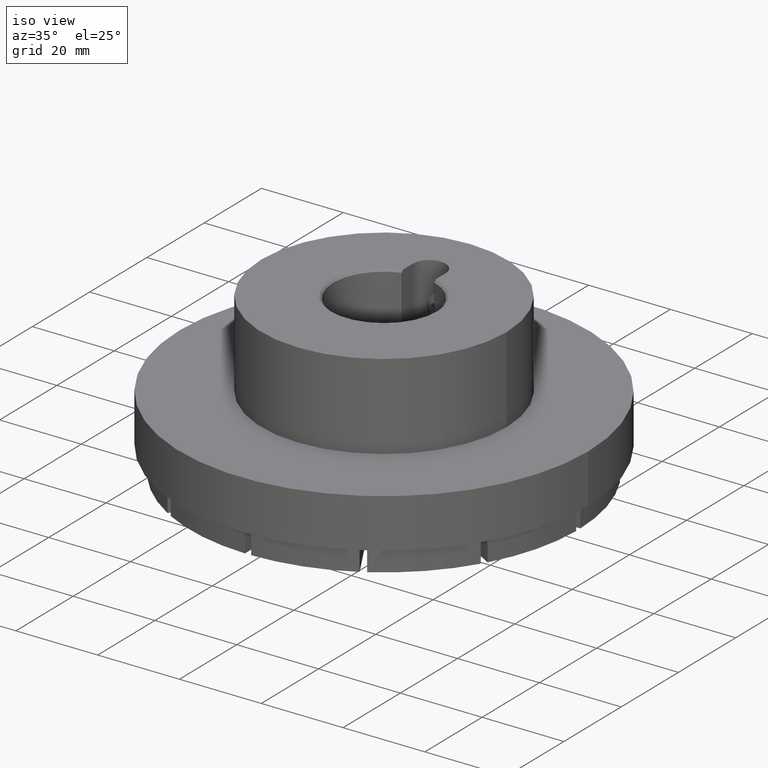
[diagram: clean part render]
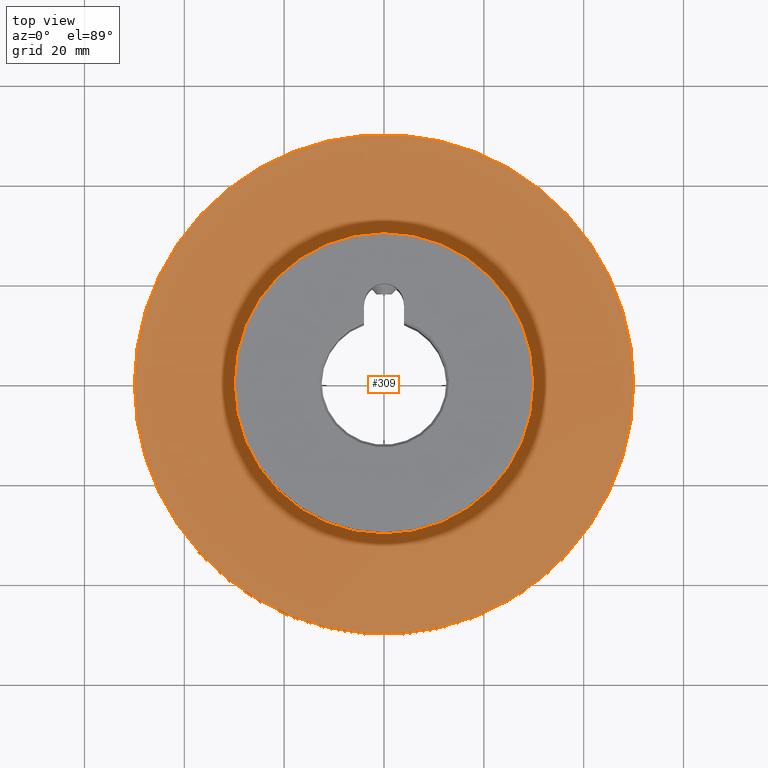
[diagram: tour spotlight — one face highlighted and labeled with its STEP entity id]
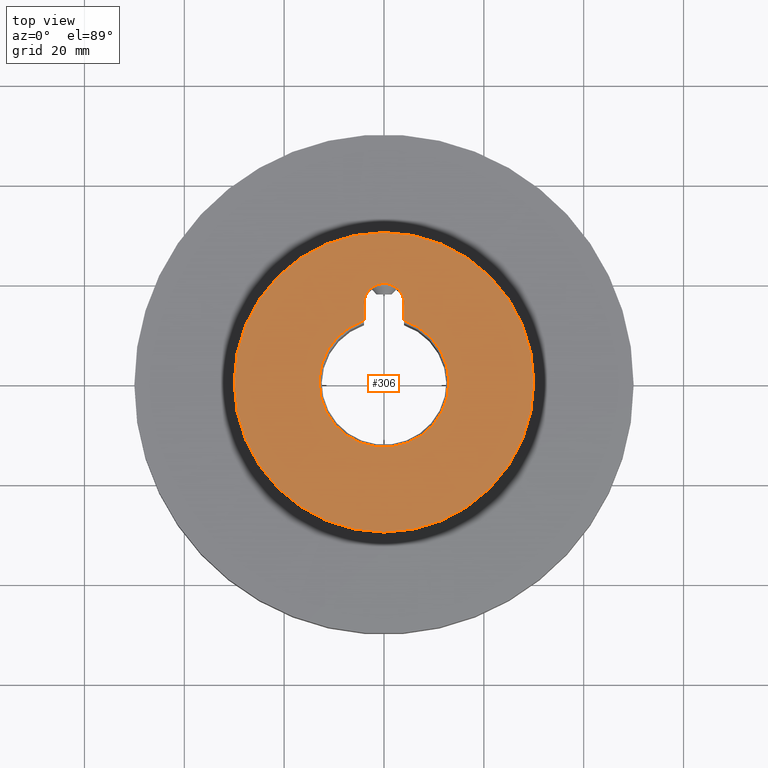
[diagram: tour spotlight — one face highlighted and labeled with its STEP entity id]
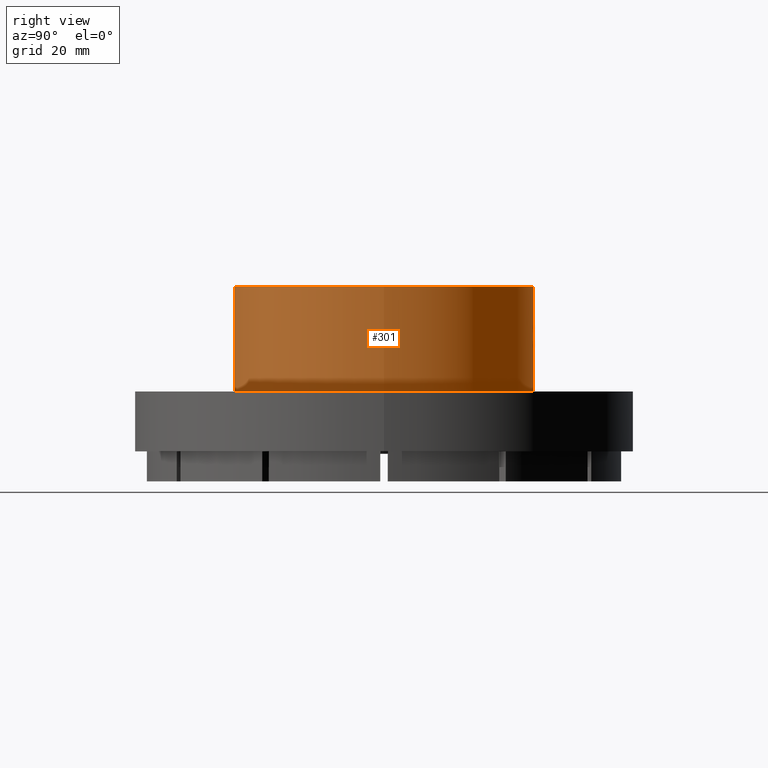
[diagram: tour spotlight — one face highlighted and labeled with its STEP entity id]
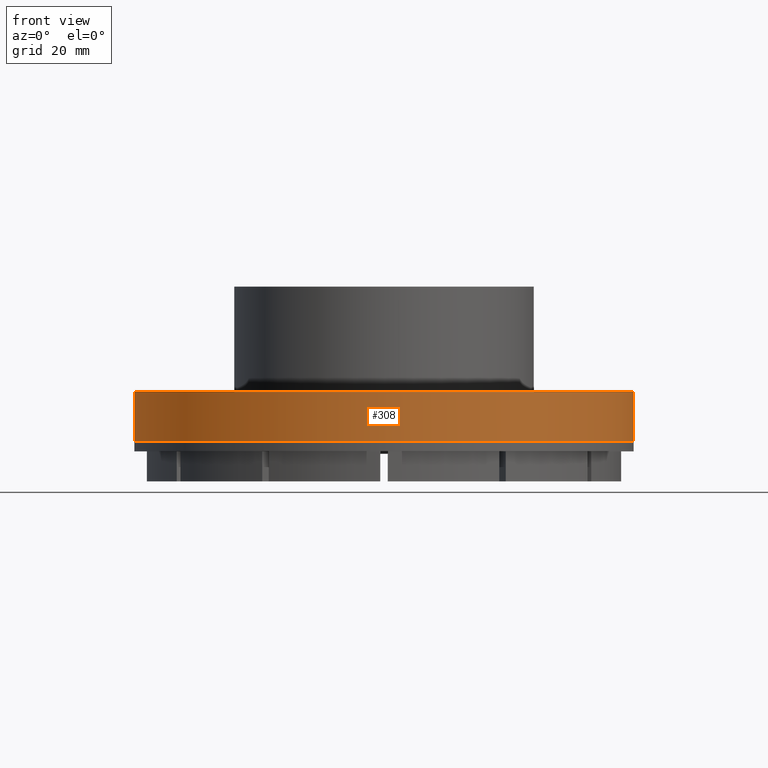
[diagram: tour spotlight — one face highlighted and labeled with its STEP entity id]
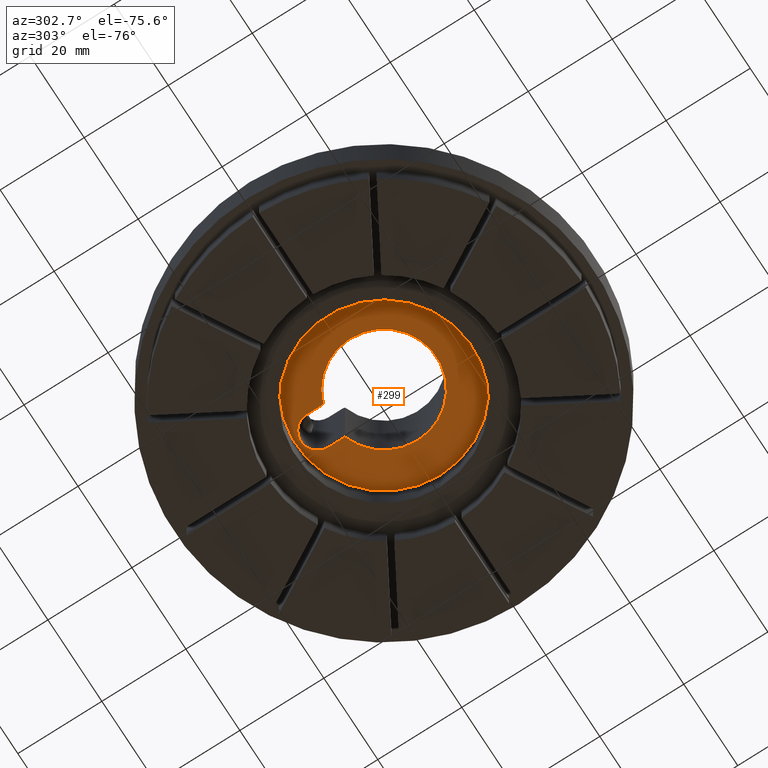
[diagram: tour spotlight — one face highlighted and labeled with its STEP entity id]
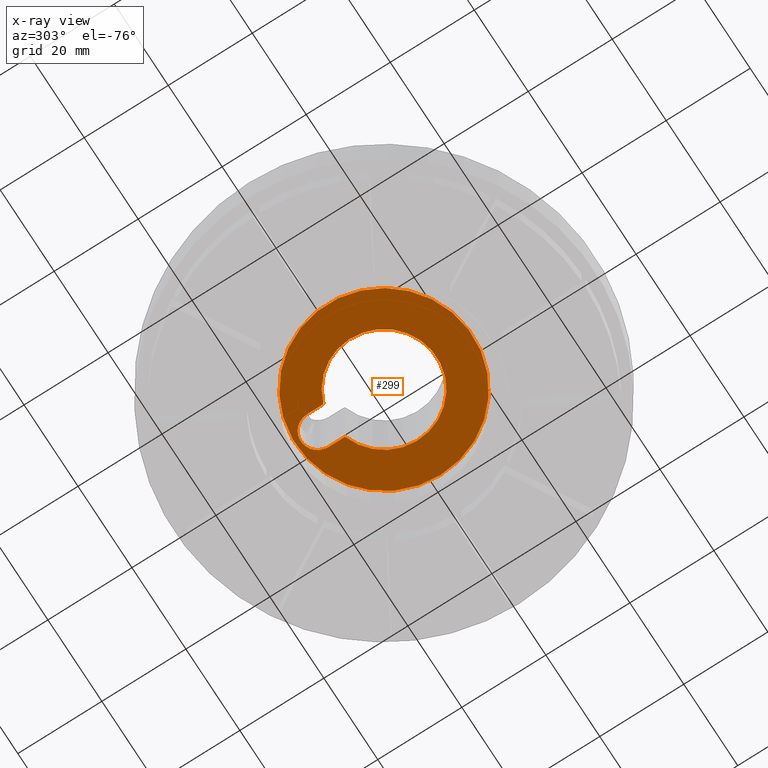
[diagram: x-ray of the same camera — body ghosted, this tour face saturated]
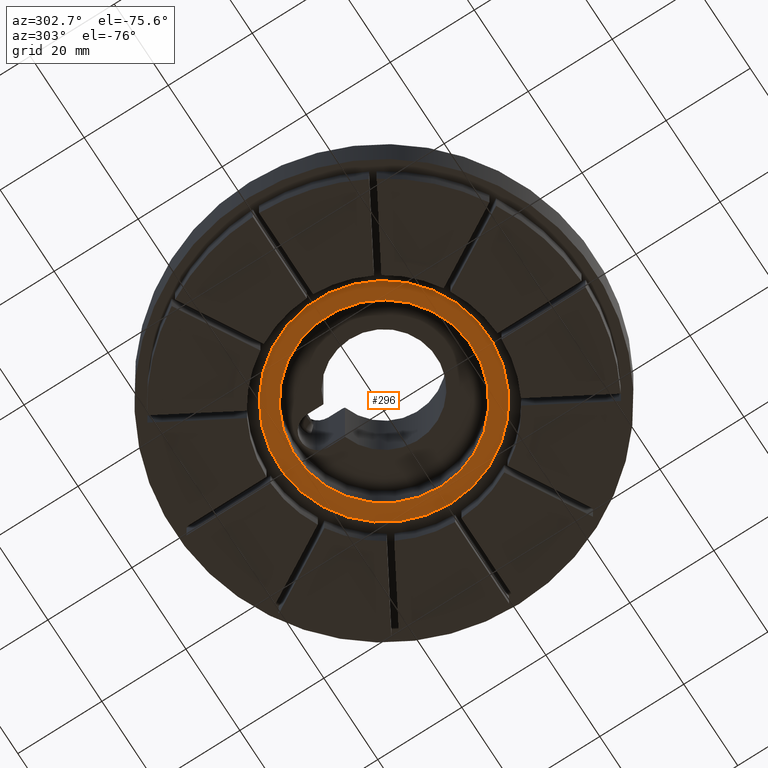
[diagram: tour spotlight — one face highlighted and labeled with its STEP entity id]
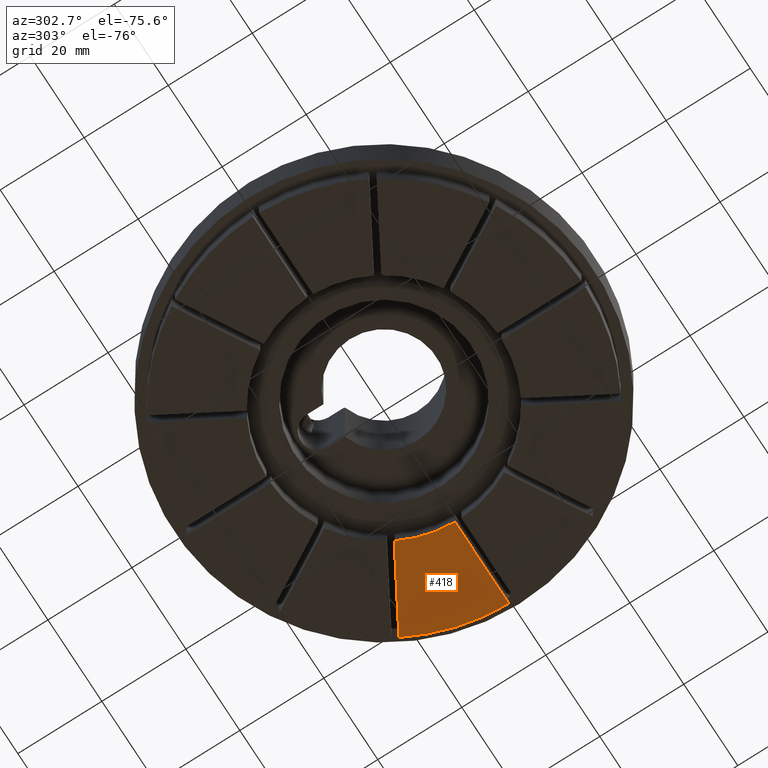
[diagram: tour spotlight — one face highlighted and labeled with its STEP entity id]
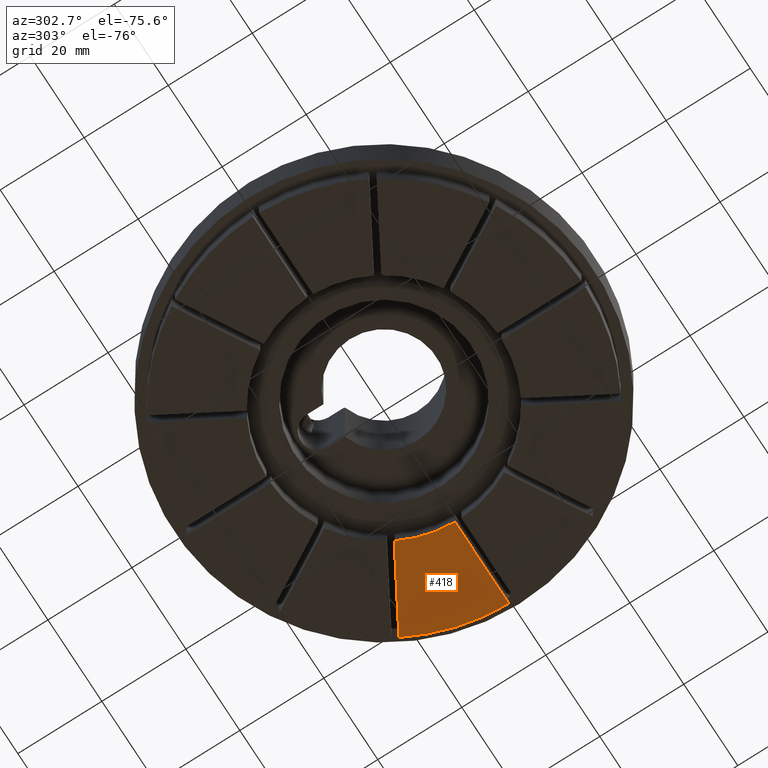
[diagram: tour spotlight — one face highlighted and labeled with its STEP entity id]
A machine part: a face-by-face anatomy tour. The part has 167 B-rep faces; the first image is the clean iso view, then the 8 largest visible faces are spotlighted one at a time (largest first), each with its STEP entity span.

Face 1 — top view, entity #309. In plain terms, the highlighted planar face has unit normal (0, 0, 1).
Definition (entity closure, byte-faithful):
#309 = ADVANCED_FACE( '', ( #456, #457 ), #458, .T. );
#456 = FACE_OUTER_BOUND( '', #668, .T. );
#457 = FACE_BOUND( '', #669, .T. );
#458 = PLANE( '', #670 );
#668 = EDGE_LOOP( '', ( #929 ) );
#669 = EDGE_LOOP( '', ( #930 ) );
#670 = AXIS2_PLACEMENT_3D( '', #931, #932, #933 );
#929 = ORIENTED_EDGE( '', *, *, #1533, .T. );
#930 = ORIENTED_EDGE( '', *, *, #1526, .F. );
#931 = CARTESIAN_POINT( '', ( 0.000000000000000, 0.000000000000000, 18.0000000000000 ) );
#932 = DIRECTION( '', ( 0.000000000000000, 0.000000000000000, 1.00000000000000 ) );
#933 = DIRECTION( '', ( 1.00000000000000, 0.000000000000000, 0.000000000000000 ) );
#1526 = EDGE_CURVE( '', #1747, #1747, #1748, .T. );
#1533 = EDGE_CURVE( '', #1759, #1759, #1760, .T. );
#1747 = VERTEX_POINT( '', #2169 );
#1748 = CIRCLE( '', #2170, 30.0000000000000 );
#1759 = VERTEX_POINT( '', #2244 );
#1760 = CIRCLE( '', #2245, 50.0000000000000 );
#2169 = CARTESIAN_POINT( '', ( 30.0000000000000, 0.000000000000000, 18.0000000000000 ) );
#2170 = AXIS2_PLACEMENT_3D( '', #2726, #2727, #2728 );
#2244 = CARTESIAN_POINT( '', ( 50.0000000000000, 0.000000000000000, 18.0000000000000 ) );
#2245 = AXIS2_PLACEMENT_3D( '', #2740, #2741, #2742 );
#2726 = CARTESIAN_POINT( '', ( 0.000000000000000, 0.000000000000000, 18.0000000000000 ) );
#2727 = DIRECTION( '', ( 0.000000000000000, 0.000000000000000, 1.00000000000000 ) );
#2728 = DIRECTION( '', ( 1.00000000000000, 0.000000000000000, 0.000000000000000 ) );
#2740 = CARTESIAN_POINT( '', ( 0.000000000000000, 0.000000000000000, 18.0000000000000 ) );
#2741 = DIRECTION( '', ( 0.000000000000000, 0.000000000000000, 1.00000000000000 ) );
#2742 = DIRECTION( '', ( 1.00000000000000, 0.000000000000000, 0.000000000000000 ) );

Face 2 — top view, entity #306. In plain terms, the highlighted planar face has unit normal (0, 0, 1).
Definition (entity closure, byte-faithful):
#306 = ADVANCED_FACE( '', ( #447, #448 ), #449, .T. );
#447 = FACE_OUTER_BOUND( '', #659, .T. );
#448 = FACE_BOUND( '', #660, .T. );
#449 = PLANE( '', #661 );
#659 = EDGE_LOOP( '', ( #911 ) );
#660 = EDGE_LOOP( '', ( #912, #913, #914, #915 ) );
#661 = AXIS2_PLACEMENT_3D( '', #916, #917, #918 );
#911 = ORIENTED_EDGE( '', *, *, #1525, .F. );
#912 = ORIENTED_EDGE( '', *, *, #1522, .F. );
#913 = ORIENTED_EDGE( '', *, *, #1512, .T. );
#914 = ORIENTED_EDGE( '', *, *, #1531, .F. );
#915 = ORIENTED_EDGE( '', *, *, #1529, .F. );
#916 = CARTESIAN_POINT( '', ( 0.000000000000000, 0.000000000000000, 39.0000000000000 ) );
#917 = DIRECTION( '', ( 0.000000000000000, 0.000000000000000, 1.00000000000000 ) );
#918 = DIRECTION( '', ( 1.00000000000000, 0.000000000000000, 0.000000000000000 ) );
#1512 = EDGE_CURVE( '', #1723, #1720, #1724, .F. );
#1522 = EDGE_CURVE( '', #1723, #1740, #1741, .F. );
#1525 = EDGE_CURVE( '', #1745, #1745, #1746, .F. );
#1529 = EDGE_CURVE( '', #1740, #1753, #1754, .F. );
#1531 = EDGE_CURVE( '', #1753, #1720, #1756, .F. );
#1720 = VERTEX_POINT( '', #2069 );
#1723 = VERTEX_POINT( '', #2075 );
#1724 = CIRCLE( '', #2076, 13.0000000000000 );
#1740 = VERTEX_POINT( '', #2099 );
#1741 = LINE( '', #2100, #2101 );
#1745 = VERTEX_POINT( '', #2167 );
#1746 = CIRCLE( '', #2168, 30.0000000000000 );
#1753 = VERTEX_POINT( '', #2236 );
#1754 = CIRCLE( '', #2237, 4.00000000000000 );
#1756 = LINE( '', #2240, #2241 );
#2069 = CARTESIAN_POINT( '', ( -4.00000000000000, 12.3693168768530, 39.0000000000000 ) );
#2075 = CARTESIAN_POINT( '', ( 4.00000000000000, 12.3693168768530, 39.0000000000000 ) );
#2076 = AXIS2_PLACEMENT_3D( '', #2702, #2703, #2704 );
#2099 = CARTESIAN_POINT( '', ( 4.00000000000000, 15.8000000000000, 39.0000000000000 ) );
#2100 = CARTESIAN_POINT( '', ( 4.00000000000000, 11.8427192823270, 39.0000000000000 ) );
#2101 = VECTOR( '', #2721, 1000.00000000000 );
#2167 = CARTESIAN_POINT( '', ( 30.0000000000000, 0.000000000000000, 39.0000000000000 ) );
#2168 = AXIS2_PLACEMENT_3D( '', #2723, #2724, #2725 );
#2236 = CARTESIAN_POINT( '', ( -4.00000000000000, 15.8000000000000, 39.0000000000000 ) );
#2237 = AXIS2_PLACEMENT_3D( '', #2732, #2733, #2734 );
#2240 = CARTESIAN_POINT( '', ( -4.00000000000000, 15.8000000000000, 39.0000000000000 ) );
#2241 = VECTOR( '', #2736, 1000.00000000000 );
#2702 = CARTESIAN_POINT( '', ( 0.000000000000000, 0.000000000000000, 39.0000000000000 ) );
#2703 = DIRECTION( '', ( 0.000000000000000, 0.000000000000000, 1.00000000000000 ) );
#2704 = DIRECTION( '', ( 1.00000000000000, 0.000000000000000, -0.000000000000000 ) );
#2721 = DIRECTION( '', ( -6.12303176911189E-017, -1.00000000000000, 0.000000000000000 ) );
#2723 = CARTESIAN_POINT( '', ( 0.000000000000000, 0.000000000000000, 39.0000000000000 ) );
#2724 = DIRECTION( '', ( 0.000000000000000, 0.000000000000000, 1.00000000000000 ) );
#2725 = DIRECTION( '', ( 1.00000000000000, 0.000000000000000, -0.000000000000000 ) );
#2732 = CARTESIAN_POINT( '', ( 8.67361737988404E-016, 15.8000000000000, 39.0000000000000 ) );
#2733 = DIRECTION( '', ( -0.000000000000000, 0.000000000000000, -1.00000000000000 ) );
#2734 = DIRECTION( '', ( -1.00000000000000, 0.000000000000000, 0.000000000000000 ) );
#2736 = DIRECTION( '', ( 6.12303176911189E-017, 1.00000000000000, 0.000000000000000 ) );

Face 3 — right view, entity #301. In plain terms, the highlighted cylindrical surface (bore or boss wall) has radius 30 mm, axis along (0, -0, 1).
Definition (entity closure, byte-faithful):
#301 = ADVANCED_FACE( '', ( #432, #433, #434 ), #435, .T. );
#432 = FACE_BOUND( '', #644, .T. );
#433 = FACE_OUTER_BOUND( '', #645, .T. );
#434 = FACE_OUTER_BOUND( '', #646, .T. );
#435 = CYLINDRICAL_SURFACE( '', #647, 30.0000000000000 );
#644 = EDGE_LOOP( '', ( #879 ) );
#645 = EDGE_LOOP( '', ( #880 ) );
#646 = EDGE_LOOP( '', ( #881 ) );
#647 = AXIS2_PLACEMENT_3D( '', #882, #883, #884 );
#879 = ORIENTED_EDGE( '', *, *, #1524, .T. );
#880 = ORIENTED_EDGE( '', *, *, #1525, .T. );
#881 = ORIENTED_EDGE( '', *, *, #1526, .T. );
#882 = CARTESIAN_POINT( '', ( 0.000000000000000, 0.000000000000000, 59.9999999999745 ) );
#883 = DIRECTION( '', ( 0.000000000000000, -0.000000000000000, 1.00000000000000 ) );
#884 = DIRECTION( '', ( -1.00000000000000, 0.000000000000000, 0.000000000000000 ) );
#1524 = EDGE_CURVE( '', #1743, #1743, #1744, .T. );
#1525 = EDGE_CURVE( '', #1745, #1745, #1746, .F. );
#1526 = EDGE_CURVE( '', #1747, #1747, #1748, .T. );
#1743 = VERTEX_POINT( '', #2104 );
#1744 = B_SPLINE_CURVE_WITH_KNOTS( '', 3, ( #2105, #2106, #2107, #2108, #2109, #2110, #2111, #2112, #2113, #2114, #2115, #2116, #2117, #2118, #2119, #2120, #2121, #2122, #2123, #2124, #2125, #2126, #2127, #2128, #2129, #2130, #2131, #2132, #2133, #2134, #2135, #2136, #2137, #2138, #2139, #2140, #2141, #2142, #2143, #2144, #2145, #2146, #2147, #2148, #2149, #2150, #2151, #2152, #2153, #2154, #2155, #2156, #2157, #2158, #2159, #2160, #2161, #2162, #2163, #2164, #2165, #2166 ), .UNSPECIFIED., .T., .F., ( 2, 2, 2, 2, 2, 2, 2, 2, 2, 2, 2, 2, 2, 2, 2, 2, 2, 2, 2, 2, 2, 2, 2, 2, 2, 2, 2, 2, 2, 2, 2, 2, 2 ), ( -0.000977327638714202, 0.000000000000000, 0.000488663819357094, 0.000977327638714188, 0.00146599145807128, 0.00195465527742838, 0.00244331909678547, 0.00293198291614256, 0.00342064673549966, 0.00390931055485675, 0.00439797437421385, 0.00488663819357094, 0.00537530201292804, 0.00586396583228513, 0.00635262965164222, 0.00684129347099932, 0.00732995729035641, 0.00781862110971350, 0.00830728492907060, 0.00879594874842769, 0.00977327638714188, 0.0102619402064990, 0.0107506040258561, 0.0112392678452132, 0.0117279316645703, 0.0122165954839274, 0.0127052593032845, 0.0131939231226416, 0.0136825869419987, 0.0141712507613558, 0.0146599145807129, 0.0156372422194271, 0.0161259060387842 ), .UNSPECIFIED. );
#1745 = VERTEX_POINT( '', #2167 );
#1746 = CIRCLE( '', #2168, 30.0000000000000 );
#1747 = VERTEX_POINT( '', #2169 );
#1748 = CIRCLE( '', #2170, 30.0000000000000 );
#2104 = CARTESIAN_POINT( '', ( -2.49999999999999, 29.8956518577535, 29.0000000000000 ) );
#2105 = CARTESIAN_POINT( '', ( -2.50000000000000, 29.8956518577535, 29.3304775808323 ) );
#2106 = CARTESIAN_POINT( '', ( -2.49999999999999, 29.8956518577535, 28.8347612095838 ) );
#2107 = CARTESIAN_POINT( '', ( -2.48377896858562, 29.8970208930165, 28.6722980521528 ) );
#2108 = CARTESIAN_POINT( '', ( -2.42023517663305, 29.9022319891349, 28.3526915563666 ) );
#2109 = CARTESIAN_POINT( '', ( -2.37213611379253, 29.9061353535027, 28.1938870776458 ) );
#2110 = CARTESIAN_POINT( '', ( -2.24662835996783, 29.9158256201726, 27.8911678223764 ) );
#2111 = CARTESIAN_POINT( '', ( -2.16983545999867, 29.9215654978298, 27.7476032564289 ) );
#2112 = CARTESIAN_POINT( '', ( -1.98841822065854, 29.9341687832506, 27.4759014118082 ) );
#2113 = CARTESIAN_POINT( '', ( -1.88286992511588, 29.9410777283341, 27.3473135631276 ) );
#2114 = CARTESIAN_POINT( '', ( -1.65231930527968, 29.9546853697790, 27.1168078890013 ) );
#2115 = CARTESIAN_POINT( '', ( -1.52650839931173, 29.9614498738508, 27.0133473278706 ) );
#2116 = CARTESIAN_POINT( '', ( -1.25325917536713, 29.9741229709195, 26.8305857536638 ) );
#2117 = CARTESIAN_POINT( '', ( -1.10785066268252, 29.9799150815814, 26.7529634974220 ) );
#2118 = CARTESIAN_POINT( '', ( -0.807062846874800, 29.9895196852306, 26.6282589315192 ) );
#2119 = CARTESIAN_POINT( '', ( -0.649461161957923, 29.9934033867830, 26.5802331250432 ) );
#2120 = CARTESIAN_POINT( '', ( -0.326725179945651, 29.9986549228456, 26.5159866774070 ) );
#2121 = CARTESIAN_POINT( '', ( -0.164471461896911, 29.9999926053693, 26.5000887355811 ) );
#2122 = CARTESIAN_POINT( '', ( 0.161762711285325, 30.0000073334863, 26.4999119981519 ) );
#2123 = CARTESIAN_POINT( '', ( 0.327456039534987, 29.9986414520869, 26.5161522356226 ) );
#2124 = CARTESIAN_POINT( '', ( 0.648140492789255, 29.9934264519795, 26.5799501914139 ) );
#2125 = CARTESIAN_POINT( '', ( 0.804013140890073, 29.9896065694543, 26.6271540185470 ) );
#2126 = CARTESIAN_POINT( '', ( 1.10677414496523, 29.9799598117379, 26.7523598654460 ) );
#2127 = CARTESIAN_POINT( '', ( 1.25309502267483, 29.9741243770505, 26.8306051577734 ) );
#2128 = CARTESIAN_POINT( '', ( 1.52394505080226, 29.9615749050159, 27.0115049410504 ) );
#2129 = CARTESIAN_POINT( '', ( 1.65021110550217, 29.9548073029741, 27.1147843649108 ) );
#2130 = CARTESIAN_POINT( '', ( 1.88370460899105, 29.9410309474657, 27.3480642780141 ) );
#2131 = CARTESIAN_POINT( '', ( 1.98718872993048, 29.9342499388489, 27.4743556926717 ) );
#2132 = CARTESIAN_POINT( '', ( 2.16828464745320, 29.9216774285376, 27.7449895265517 ) );
#2133 = CARTESIAN_POINT( '', ( 2.24660156294148, 29.9158276747589, 27.8911062318181 ) );
#2134 = CARTESIAN_POINT( '', ( 2.37214929644241, 29.9061343500605, 28.1939158312487 ) );
#2135 = CARTESIAN_POINT( '', ( 2.41947523394578, 29.9022937605455, 28.3497435096308 ) );
#2136 = CARTESIAN_POINT( '', ( 2.48352692117649, 29.8970421042187, 28.6701698274324 ) );
#2137 = CARTESIAN_POINT( '', ( 2.49994055569246, 29.8956568287359, 28.8359092895222 ) );
#2138 = CARTESIAN_POINT( '', ( 2.50005911439450, 29.8956469143598, 29.1622743596322 ) );
#2139 = CARTESIAN_POINT( '', ( 2.48429484184476, 29.8969782129902, 29.3245043274417 ) );
#2140 = CARTESIAN_POINT( '', ( 2.42041164591389, 29.9022178875339, 29.6470172981222 ) );
#2141 = CARTESIAN_POINT( '', ( 2.37245822282261, 29.9061087001943, 29.8049571552479 ) );
#2142 = CARTESIAN_POINT( '', ( 2.18576985346663, 29.9205279461307, 30.2563702921393 ) );
#2143 = CARTESIAN_POINT( '', ( 1.99973171217608, 29.9341657147907, 30.5353553452303 ) );
#2144 = CARTESIAN_POINT( '', ( 1.65434431526765, 29.9545730377993, 30.8814105415204 ) );
#2145 = CARTESIAN_POINT( '', ( 1.52588705343646, 29.9614778299609, 30.9870503128464 ) );
#2146 = CARTESIAN_POINT( '', ( 1.25425960570107, 29.9740774319509, 31.1687630315769 ) );
#2147 = CARTESIAN_POINT( '', ( 1.11077902732584, 29.9798108181470, 31.2456588321349 ) );
#2148 = CARTESIAN_POINT( '', ( 0.808366565546948, 29.9894886624486, 31.3713618731855 ) );
#2149 = CARTESIAN_POINT( '', ( 0.649465723803189, 29.9933948579595, 31.4196584438186 ) );
#2150 = CARTESIAN_POINT( '', ( 0.329878319443487, 29.9986119866607, 31.4834920989403 ) );
#2151 = CARTESIAN_POINT( '', ( 0.167500673980486, 29.9999864970931, 31.4998379650412 ) );
#2152 = CARTESIAN_POINT( '', ( -0.162628400008239, 30.0000133050814, 31.5001596610529 ) );
#2153 = CARTESIAN_POINT( '', ( -0.325517563438863, 29.9986597156941, 31.4840648674689 ) );
#2154 = CARTESIAN_POINT( '', ( -0.645140692810125, 29.9934882917708, 31.4208125570521 ) );
#2155 = CARTESIAN_POINT( '', ( -0.803818220878221, 29.9896125163967, 31.3729225859207 ) );
#2156 = CARTESIAN_POINT( '', ( -1.10686481455157, 29.9799571863961, 31.2476066411399 ) );
#2157 = CARTESIAN_POINT( '', ( -1.25050816364777, 29.9742344372560, 31.1709189915765 ) );
#2158 = CARTESIAN_POINT( '', ( -1.52225257650477, 29.9616629688717, 30.9898258789808 ) );
#2159 = CARTESIAN_POINT( '', ( -1.65097558171478, 29.9547599162373, 30.8843749558359 ) );
#2160 = CARTESIAN_POINT( '', ( -1.88176282834681, 29.9411477847574, 30.6539522373552 ) );
#2161 = CARTESIAN_POINT( '', ( -1.98530186984671, 29.9343778507462, 30.5282508975567 ) );
#2162 = CARTESIAN_POINT( '', ( -2.16817415886107, 29.9216881482731, 30.2553864493241 ) );
#2163 = CARTESIAN_POINT( '', ( -2.24606123956745, 29.9158676395044, 30.1098270808227 ) );
#2164 = CARTESIAN_POINT( '', ( -2.43351822891324, 29.9013996310288, 29.6588004207696 ) );
#2165 = CARTESIAN_POINT( '', ( -2.50000000000000, 29.8956518577535, 29.3304775808323 ) );
#2166 = CARTESIAN_POINT( '', ( -2.49999999999999, 29.8956518577535, 28.8347612095838 ) );
#2167 = CARTESIAN_POINT( '', ( 30.0000000000000, 0.000000000000000, 39.0000000000000 ) );
#2168 = AXIS2_PLACEMENT_3D( '', #2723, #2724, #2725 );
#2169 = CARTESIAN_POINT( '', ( 30.0000000000000, 0.000000000000000, 18.0000000000000 ) );
#2170 = AXIS2_PLACEMENT_3D( '', #2726, #2727, #2728 );
#2723 = CARTESIAN_POINT( '', ( 0.000000000000000, 0.000000000000000, 39.0000000000000 ) );
#2724 = DIRECTION( '', ( 0.000000000000000, 0.000000000000000, 1.00000000000000 ) );
#2725 = DIRECTION( '', ( 1.00000000000000, 0.000000000000000, -0.000000000000000 ) );
#2726 = CARTESIAN_POINT( '', ( 0.000000000000000, 0.000000000000000, 18.0000000000000 ) );
#2727 = DIRECTION( '', ( 0.000000000000000, 0.000000000000000, 1.00000000000000 ) );
#2728 = DIRECTION( '', ( 1.00000000000000, 0.000000000000000, 0.000000000000000 ) );

Face 4 — front view, entity #308. In plain terms, the highlighted cylindrical surface (bore or boss wall) has radius 50 mm, axis along (0, -0, 1).
Definition (entity closure, byte-faithful):
#308 = ADVANCED_FACE( '', ( #453, #454 ), #455, .T. );
#453 = FACE_OUTER_BOUND( '', #665, .T. );
#454 = FACE_OUTER_BOUND( '', #666, .T. );
#455 = CYLINDRICAL_SURFACE( '', #667, 50.0000000000000 );
#665 = EDGE_LOOP( '', ( #924 ) );
#666 = EDGE_LOOP( '', ( #925 ) );
#667 = AXIS2_PLACEMENT_3D( '', #926, #927, #928 );
#924 = ORIENTED_EDGE( '', *, *, #1532, .T. );
#925 = ORIENTED_EDGE( '', *, *, #1533, .F. );
#926 = CARTESIAN_POINT( '', ( 0.000000000000000, 0.000000000000000, 39.0000000000000 ) );
#927 = DIRECTION( '', ( 0.000000000000000, -0.000000000000000, 1.00000000000000 ) );
#928 = DIRECTION( '', ( -1.00000000000000, 0.000000000000000, 0.000000000000000 ) );
#1532 = EDGE_CURVE( '', #1757, #1757, #1758, .T. );
#1533 = EDGE_CURVE( '', #1759, #1759, #1760, .T. );
#1757 = VERTEX_POINT( '', #2242 );
#1758 = CIRCLE( '', #2243, 50.0000000000000 );
#1759 = VERTEX_POINT( '', #2244 );
#1760 = CIRCLE( '', #2245, 50.0000000000000 );
#2242 = CARTESIAN_POINT( '', ( 50.0000000000000, 0.000000000000000, 8.00000000000000 ) );
#2243 = AXIS2_PLACEMENT_3D( '', #2737, #2738, #2739 );
#2244 = CARTESIAN_POINT( '', ( 50.0000000000000, 0.000000000000000, 18.0000000000000 ) );
#2245 = AXIS2_PLACEMENT_3D( '', #2740, #2741, #2742 );
#2737 = CARTESIAN_POINT( '', ( 0.000000000000000, 0.000000000000000, 8.00000000000000 ) );
#2738 = DIRECTION( '', ( 0.000000000000000, 0.000000000000000, 1.00000000000000 ) );
#2739 = DIRECTION( '', ( 1.00000000000000, 0.000000000000000, 0.000000000000000 ) );
#2740 = CARTESIAN_POINT( '', ( 0.000000000000000, 0.000000000000000, 18.0000000000000 ) );
#2741 = DIRECTION( '', ( 0.000000000000000, 0.000000000000000, 1.00000000000000 ) );
#2742 = DIRECTION( '', ( 1.00000000000000, 0.000000000000000, 0.000000000000000 ) );

Face 5 — auxiliary view, entity #299. An x-ray twin of the same camera follows (body ghosted, this face saturated) — the face is partly hidden behind the body. In plain terms, the highlighted planar face has unit normal (0, 0, 1).
Definition (entity closure, byte-faithful):
#299 = ADVANCED_FACE( '', ( #427, #428 ), #429, .F. );
#427 = FACE_BOUND( '', #639, .T. );
#428 = FACE_OUTER_BOUND( '', #640, .T. );
#429 = PLANE( '', #641 );
#639 = EDGE_LOOP( '', ( #863, #864, #865, #866 ) );
#640 = EDGE_LOOP( '', ( #867 ) );
#641 = AXIS2_PLACEMENT_3D( '', #868, #869, #870 );
#863 = ORIENTED_EDGE( '', *, *, #1518, .T. );
#864 = ORIENTED_EDGE( '', *, *, #1519, .T. );
#865 = ORIENTED_EDGE( '', *, *, #1520, .T. );
#866 = ORIENTED_EDGE( '', *, *, #1517, .T. );
#867 = ORIENTED_EDGE( '', *, *, #1521, .F. );
#868 = CARTESIAN_POINT( '', ( 0.000000000000000, 0.000000000000000, 15.0000000000000 ) );
#869 = DIRECTION( '', ( 0.000000000000000, 0.000000000000000, 1.00000000000000 ) );
#870 = DIRECTION( '', ( 1.00000000000000, 0.000000000000000, 0.000000000000000 ) );
#1517 = EDGE_CURVE( '', #1728, #1730, #1732, .T. );
#1518 = EDGE_CURVE( '', #1730, #1733, #1734, .T. );
#1519 = EDGE_CURVE( '', #1733, #1735, #1736, .T. );
#1520 = EDGE_CURVE( '', #1735, #1728, #1737, .T. );
#1521 = EDGE_CURVE( '', #1738, #1738, #1739, .T. );
#1728 = VERTEX_POINT( '', #2083 );
#1730 = VERTEX_POINT( '', #2086 );
#1732 = CIRCLE( '', #2089, 12.5000000000000 );
#1733 = VERTEX_POINT( '', #2090 );
#1734 = LINE( '', #2091, #2092 );
#1735 = VERTEX_POINT( '', #2093 );
#1736 = CIRCLE( '', #2094, 4.00000000000000 );
#1737 = LINE( '', #2095, #2096 );
#1738 = VERTEX_POINT( '', #2097 );
#1739 = CIRCLE( '', #2098, 21.0000000000000 );
#2083 = CARTESIAN_POINT( '', ( -4.00000000000000, 11.8427192823270, 15.0000000000000 ) );
#2086 = CARTESIAN_POINT( '', ( 4.00000000000000, 11.8427192823270, 15.0000000000000 ) );
#2089 = AXIS2_PLACEMENT_3D( '', #2710, #2711, #2712 );
#2090 = CARTESIAN_POINT( '', ( 4.00000000000000, 15.8000000000000, 15.0000000000000 ) );
#2091 = CARTESIAN_POINT( '', ( 4.00000000000000, 11.8427192823270, 15.0000000000000 ) );
#2092 = VECTOR( '', #2713, 1000.00000000000 );
#2093 = CARTESIAN_POINT( '', ( -4.00000000000000, 15.8000000000000, 15.0000000000000 ) );
#2094 = AXIS2_PLACEMENT_3D( '', #2714, #2715, #2716 );
#2095 = CARTESIAN_POINT( '', ( -4.00000000000000, 15.8000000000000, 15.0000000000000 ) );
#2096 = VECTOR( '', #2717, 1000.00000000000 );
#2097 = CARTESIAN_POINT( '', ( 21.0000000000000, 0.000000000000000, 15.0000000000000 ) );
#2098 = AXIS2_PLACEMENT_3D( '', #2718, #2719, #2720 );
#2710 = CARTESIAN_POINT( '', ( 0.000000000000000, 0.000000000000000, 15.0000000000000 ) );
#2711 = DIRECTION( '', ( 0.000000000000000, 0.000000000000000, 1.00000000000000 ) );
#2712 = DIRECTION( '', ( 1.00000000000000, 0.000000000000000, -0.000000000000000 ) );
#2713 = DIRECTION( '', ( 6.12303176911189E-017, 1.00000000000000, -0.000000000000000 ) );
#2714 = CARTESIAN_POINT( '', ( 8.67361737988404E-016, 15.8000000000000, 15.0000000000000 ) );
#2715 = DIRECTION( '', ( 0.000000000000000, 0.000000000000000, 1.00000000000000 ) );
#2716 = DIRECTION( '', ( 1.00000000000000, 0.000000000000000, -0.000000000000000 ) );
#2717 = DIRECTION( '', ( -6.12303176911189E-017, -1.00000000000000, 0.000000000000000 ) );
#2718 = CARTESIAN_POINT( '', ( 0.000000000000000, 0.000000000000000, 15.0000000000000 ) );
#2719 = DIRECTION( '', ( 0.000000000000000, 0.000000000000000, 1.00000000000000 ) );
#2720 = DIRECTION( '', ( 1.00000000000000, 0.000000000000000, 0.000000000000000 ) );

Face 6 — auxiliary view, entity #296. In plain terms, the highlighted planar face has unit normal (0, 0, 1).
Definition (entity closure, byte-faithful):
#296 = ADVANCED_FACE( '', ( #420, #421 ), #422, .F. );
#420 = FACE_BOUND( '', #632, .T. );
#421 = FACE_OUTER_BOUND( '', #633, .T. );
#422 = PLANE( '', #634 );
#632 = EDGE_LOOP( '', ( #844 ) );
#633 = EDGE_LOOP( '', ( #845 ) );
#634 = AXIS2_PLACEMENT_3D( '', #846, #847, #848 );
#844 = ORIENTED_EDGE( '', *, *, #1509, .T. );
#845 = ORIENTED_EDGE( '', *, *, #1510, .F. );
#846 = CARTESIAN_POINT( '', ( 0.000000000000000, 0.000000000000000, 5.50000000000000 ) );
#847 = DIRECTION( '', ( 0.000000000000000, 0.000000000000000, 1.00000000000000 ) );
#848 = DIRECTION( '', ( 1.00000000000000, 0.000000000000000, 0.000000000000000 ) );
#1509 = EDGE_CURVE( '', #1716, #1716, #1717, .T. );
#1510 = EDGE_CURVE( '', #1718, #1718, #1719, .T. );
#1716 = VERTEX_POINT( '', #2065 );
#1717 = CIRCLE( '', #2066, 21.0000000000000 );
#1718 = VERTEX_POINT( '', #2067 );
#1719 = CIRCLE( '', #2068, 25.0000000000000 );
#2065 = CARTESIAN_POINT( '', ( 21.0000000000000, 0.000000000000000, 5.50000000000000 ) );
#2066 = AXIS2_PLACEMENT_3D( '', #2696, #2697, #2698 );
#2067 = CARTESIAN_POINT( '', ( 25.0000000000000, 0.000000000000000, 5.50000000000000 ) );
#2068 = AXIS2_PLACEMENT_3D( '', #2699, #2700, #2701 );
#2696 = CARTESIAN_POINT( '', ( 0.000000000000000, 0.000000000000000, 5.50000000000000 ) );
#2697 = DIRECTION( '', ( 0.000000000000000, 0.000000000000000, 1.00000000000000 ) );
#2698 = DIRECTION( '', ( 1.00000000000000, 0.000000000000000, -0.000000000000000 ) );
#2699 = CARTESIAN_POINT( '', ( 0.000000000000000, 0.000000000000000, 5.50000000000000 ) );
#2700 = DIRECTION( '', ( 0.000000000000000, 0.000000000000000, 1.00000000000000 ) );
#2701 = DIRECTION( '', ( 1.00000000000000, 0.000000000000000, -0.000000000000000 ) );

Face 7 — auxiliary view, entity #418. In plain terms, the highlighted planar face has unit normal (0, 0, 1).
Definition (entity closure, byte-faithful):
#418 = ADVANCED_FACE( '', ( #630 ), #631, .F. );
#630 = FACE_OUTER_BOUND( '', #842, .T. );
#631 = PLANE( '', #843 );
#842 = EDGE_LOOP( '', ( #1502, #1503, #1504, #1505 ) );
#843 = AXIS2_PLACEMENT_3D( '', #1506, #1507, #1508 );
#1502 = ORIENTED_EDGE( '', *, *, #1704, .F. );
#1503 = ORIENTED_EDGE( '', *, *, #1715, .F. );
#1504 = ORIENTED_EDGE( '', *, *, #1713, .F. );
#1505 = ORIENTED_EDGE( '', *, *, #1711, .F. );
#1506 = CARTESIAN_POINT( '', ( -6.93889390390723E-015, -1.08420217248550E-016, 0.000000000000000 ) );
#1507 = DIRECTION( '', ( 0.000000000000000, -0.000000000000000, 1.00000000000000 ) );
#1508 = DIRECTION( '', ( 0.999875338490142, 0.0157894736842105, 0.000000000000000 ) );
#1704 = EDGE_CURVE( '', #2045, #2046, #2047, .T. );
#1711 = EDGE_CURVE( '', #2046, #2058, #2059, .T. );
#1713 = EDGE_CURVE( '', #2058, #2061, #2062, .T. );
#1715 = EDGE_CURVE( '', #2061, #2045, #2064, .T. );
#2045 = VERTEX_POINT( '', #2668 );
#2046 = VERTEX_POINT( '', #2669 );
#2047 = LINE( '', #2670, #2671 );
#2058 = VERTEX_POINT( '', #2686 );
#2059 = CIRCLE( '', #2687, 47.5000000000000 );
#2061 = VERTEX_POINT( '', #2690 );
#2062 = LINE( '', #2691, #2692 );
#2064 = CIRCLE( '', #2695, 27.5000000000000 );
#2668 = CARTESIAN_POINT( '', ( 27.4897708247995, 0.749999999999983, 0.000000000000000 ) );
#2669 = CARTESIAN_POINT( '', ( 47.4940785782817, 0.750000000000000, 0.000000000000000 ) );
#2670 = CARTESIAN_POINT( '', ( 27.4897708247996, 0.750000000000000, 0.000000000000000 ) );
#2671 = VECTOR( '', #3016, 1000.00000000000 );
#2686 = CARTESIAN_POINT( '', ( 41.5060785781263, 23.0975202363025, 0.000000000000000 ) );
#2687 = AXIS2_PLACEMENT_3D( '', #3027, #3028, #3029 );
#2690 = CARTESIAN_POINT( '', ( 24.1818398784887, 13.0953663595615, 0.000000000000000 ) );
#2691 = CARTESIAN_POINT( '', ( 41.5060785781263, 23.0975202363026, 0.000000000000000 ) );
#2692 = VECTOR( '', #3031, 1000.00000000000 );
#2695 = AXIS2_PLACEMENT_3D( '', #3033, #3034, #3035 );
#3016 = DIRECTION( '', ( 1.00000000000000, 0.000000000000000, 0.000000000000000 ) );
#3027 = CARTESIAN_POINT( '', ( -6.93889390390723E-015, -1.08420217248550E-016, 0.000000000000000 ) );
#3028 = DIRECTION( '', ( 0.000000000000000, 0.000000000000000, 1.00000000000000 ) );
#3029 = DIRECTION( '', ( 1.00000000000000, 0.000000000000000, 0.000000000000000 ) );
#3031 = DIRECTION( '', ( -0.866025403784439, -0.500000000000000, -0.000000000000000 ) );
#3033 = CARTESIAN_POINT( '', ( -6.93889390390723E-015, -1.08420217248550E-016, 0.000000000000000 ) );
#3034 = DIRECTION( '', ( 0.000000000000000, 0.000000000000000, -1.00000000000000 ) );
#3035 = DIRECTION( '', ( 1.00000000000000, 3.46944695195361E-018, 0.000000000000000 ) );

Face 8 — auxiliary view, entity #418. In plain terms, the highlighted planar face has unit normal (0, 0, 1).
Definition (entity closure, byte-faithful):
#418 = ADVANCED_FACE( '', ( #630 ), #631, .F. );
#630 = FACE_OUTER_BOUND( '', #842, .T. );
#631 = PLANE( '', #843 );
#842 = EDGE_LOOP( '', ( #1502, #1503, #1504, #1505 ) );
#843 = AXIS2_PLACEMENT_3D( '', #1506, #1507, #1508 );
#1502 = ORIENTED_EDGE( '', *, *, #1704, .F. );
#1503 = ORIENTED_EDGE( '', *, *, #1715, .F. );
#1504 = ORIENTED_EDGE( '', *, *, #1713, .F. );
#1505 = ORIENTED_EDGE( '', *, *, #1711, .F. );
#1506 = CARTESIAN_POINT( '', ( -6.93889390390723E-015, -1.08420217248550E-016, 0.000000000000000 ) );
#1507 = DIRECTION( '', ( 0.000000000000000, -0.000000000000000, 1.00000000000000 ) );
#1508 = DIRECTION( '', ( 0.999875338490142, 0.0157894736842105, 0.000000000000000 ) );
#1704 = EDGE_CURVE( '', #2045, #2046, #2047, .T. );
#1711 = EDGE_CURVE( '', #2046, #2058, #2059, .T. );
#1713 = EDGE_CURVE( '', #2058, #2061, #2062, .T. );
#1715 = EDGE_CURVE( '', #2061, #2045, #2064, .T. );
#2045 = VERTEX_POINT( '', #2668 );
#2046 = VERTEX_POINT( '', #2669 );
#2047 = LINE( '', #2670, #2671 );
#2058 = VERTEX_POINT( '', #2686 );
#2059 = CIRCLE( '', #2687, 47.5000000000000 );
#2061 = VERTEX_POINT( '', #2690 );
#2062 = LINE( '', #2691, #2692 );
#2064 = CIRCLE( '', #2695, 27.5000000000000 );
#2668 = CARTESIAN_POINT( '', ( 27.4897708247995, 0.749999999999983, 0.000000000000000 ) );
#2669 = CARTESIAN_POINT( '', ( 47.4940785782817, 0.750000000000000, 0.000000000000000 ) );
#2670 = CARTESIAN_POINT( '', ( 27.4897708247996, 0.750000000000000, 0.000000000000000 ) );
#2671 = VECTOR( '', #3016, 1000.00000000000 );
#2686 = CARTESIAN_POINT( '', ( 41.5060785781263, 23.0975202363025, 0.000000000000000 ) );
#2687 = AXIS2_PLACEMENT_3D( '', #3027, #3028, #3029 );
#2690 = CARTESIAN_POINT( '', ( 24.1818398784887, 13.0953663595615, 0.000000000000000 ) );
#2691 = CARTESIAN_POINT( '', ( 41.5060785781263, 23.0975202363026, 0.000000000000000 ) );
#2692 = VECTOR( '', #3031, 1000.00000000000 );
#2695 = AXIS2_PLACEMENT_3D( '', #3033, #3034, #3035 );
#3016 = DIRECTION( '', ( 1.00000000000000, 0.000000000000000, 0.000000000000000 ) );
#3027 = CARTESIAN_POINT( '', ( -6.93889390390723E-015, -1.08420217248550E-016, 0.000000000000000 ) );
#3028 = DIRECTION( '', ( 0.000000000000000, 0.000000000000000, 1.00000000000000 ) );
#3029 = DIRECTION( '', ( 1.00000000000000, 0.000000000000000, 0.000000000000000 ) );
#3031 = DIRECTION( '', ( -0.866025403784439, -0.500000000000000, -0.000000000000000 ) );
#3033 = CARTESIAN_POINT( '', ( -6.93889390390723E-015, -1.08420217248550E-016, 0.000000000000000 ) );
#3034 = DIRECTION( '', ( 0.000000000000000, 0.000000000000000, -1.00000000000000 ) );
#3035 = DIRECTION( '', ( 1.00000000000000, 3.46944695195361E-018, 0.000000000000000 ) );